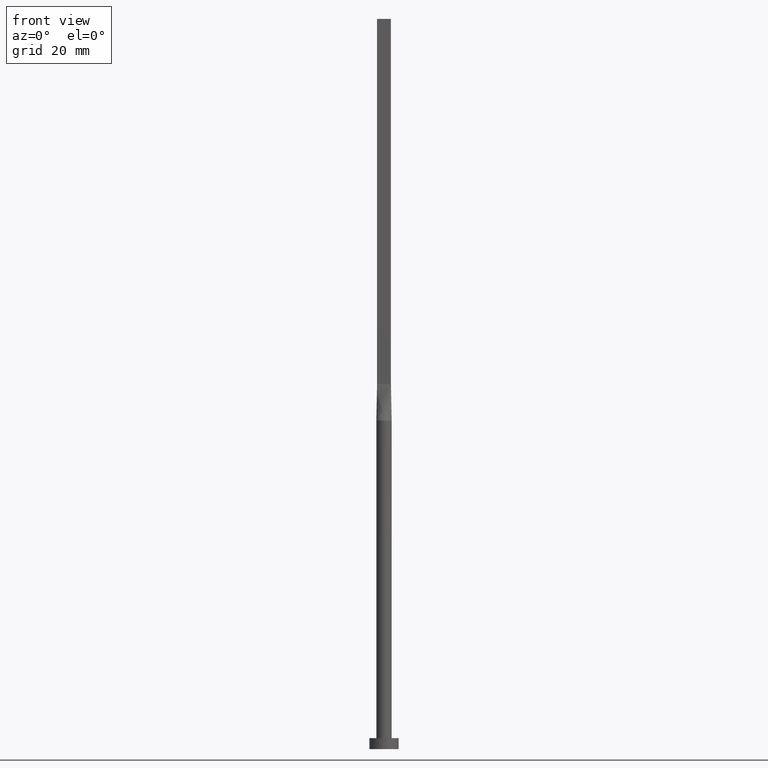
[diagram: clean part render]
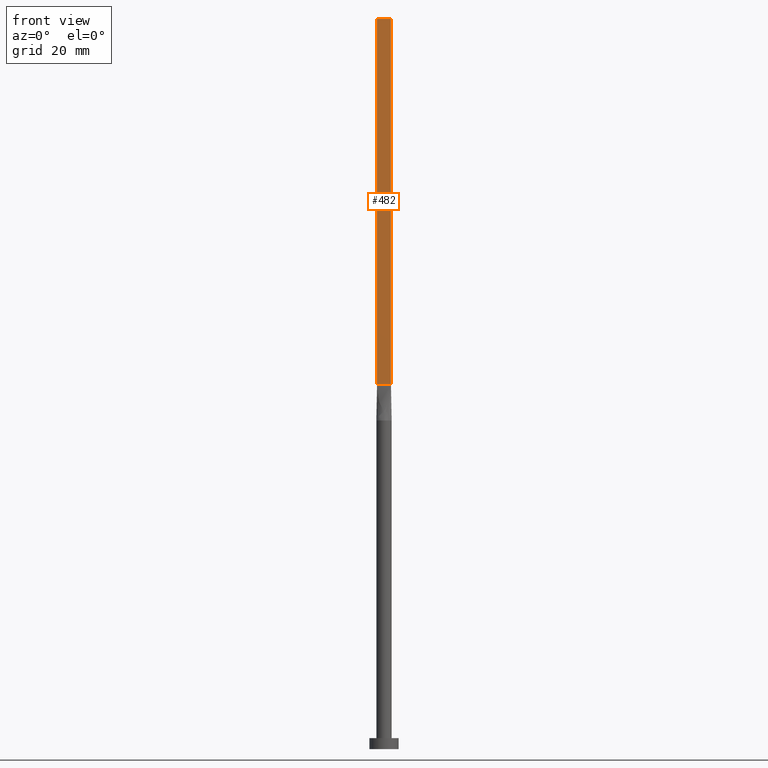
[diagram: same view with one face highlighted and labeled with its STEP entity id]
A machine part, front view. The second image highlights one B-rep face of the part: STEP entity #482.
In plain terms, the highlighted planar face has unit normal (0, 1, -0).
Its self-contained STEP definition (entity closure, byte-faithful):
#23 = FACE_OUTER_BOUND ( 'NONE', #390, .T. ) ;
#39 = CARTESIAN_POINT ( 'NONE',  ( -1.899999999999999911, -0.2999999999999994893, 200.0000000000000000 ) ) ;
#75 = EDGE_CURVE ( 'NONE', #521, #385, #114, .T. ) ;
#93 = VECTOR ( 'NONE', #208, 1000.000000000000000 ) ;
#114 = LINE ( 'NONE', #39, #406 ) ;
#122 = CARTESIAN_POINT ( 'NONE',  ( -1.899999999999999911, -0.2999999999999994893, 200.0000000000000000 ) ) ;
#124 = ORIENTED_EDGE ( 'NONE', *, *, #561, .T. ) ;
#162 = CARTESIAN_POINT ( 'NONE',  ( -1.899999999999999911, -0.2999999999999994893, 200.0000000000000000 ) ) ;
#164 = CARTESIAN_POINT ( 'NONE',  ( -1.899999999999999911, -0.2999999999999994893, 99.99999999999998579 ) ) ;
#203 = AXIS2_PLACEMENT_3D ( 'NONE', #382, #567, #229 ) ;
#205 = VERTEX_POINT ( 'NONE', #215 ) ;
#208 = DIRECTION ( 'NONE',  ( -0.000000000000000000, -0.000000000000000000, -1.000000000000000000 ) ) ;
#215 = CARTESIAN_POINT ( 'NONE',  ( 1.899999999999999023, -0.2999999999999997669, 99.99999999999998579 ) ) ;
#229 = DIRECTION ( 'NONE',  ( -1.000000000000000000, 7.132909029509899409E-17, 0.000000000000000000 ) ) ;
#275 = PLANE ( 'NONE',  #203 ) ;
#279 = ORIENTED_EDGE ( 'NONE', *, *, #302, .T. ) ;
#282 = VECTOR ( 'NONE', #531, 1000.000000000000000 ) ;
#302 = EDGE_CURVE ( 'NONE', #569, #205, #401, .T. ) ;
#323 = CARTESIAN_POINT ( 'NONE',  ( 1.899999999999999023, -0.2999999999999997669, 200.0000000000000000 ) ) ;
#349 = CARTESIAN_POINT ( 'NONE',  ( 1.899999999999999023, -0.2999999999999997669, 200.0000000000000000 ) ) ;
#382 = CARTESIAN_POINT ( 'NONE',  ( -1.899999999999999911, -0.2999999999999994893, 200.0000000000000000 ) ) ;
#385 = VERTEX_POINT ( 'NONE', #323 ) ;
#387 = LINE ( 'NONE', #349, #93 ) ;
#390 = EDGE_LOOP ( 'NONE', ( #279, #540, #441, #124 ) ) ;
#395 = CARTESIAN_POINT ( 'NONE',  ( -1.899999999999999911, -0.2999999999999994893, 99.99999999999998579 ) ) ;
#401 = LINE ( 'NONE', #395, #282 ) ;
#406 = VECTOR ( 'NONE', #475, 1000.000000000000000 ) ;
#427 = VECTOR ( 'NONE', #522, 1000.000000000000000 ) ;
#441 = ORIENTED_EDGE ( 'NONE', *, *, #75, .F. ) ;
#475 = DIRECTION ( 'NONE',  ( 1.000000000000000000, -7.132909029509899409E-17, 0.000000000000000000 ) ) ;
#482 = ADVANCED_FACE ( 'NONE', ( #23 ), #275, .F. ) ;
#521 = VERTEX_POINT ( 'NONE', #162 ) ;
#522 = DIRECTION ( 'NONE',  ( -0.000000000000000000, -0.000000000000000000, -1.000000000000000000 ) ) ;
#531 = DIRECTION ( 'NONE',  ( 1.000000000000000000, -7.132909029509898176E-17, 0.000000000000000000 ) ) ;
#540 = ORIENTED_EDGE ( 'NONE', *, *, #544, .F. ) ;
#544 = EDGE_CURVE ( 'NONE', #385, #205, #387, .T. ) ;
#561 = EDGE_CURVE ( 'NONE', #521, #569, #572, .T. ) ;
#567 = DIRECTION ( 'NONE',  ( 7.132909029509899409E-17, 1.000000000000000000, -0.000000000000000000 ) ) ;
#569 = VERTEX_POINT ( 'NONE', #164 ) ;
#572 = LINE ( 'NONE', #122, #427 ) ;